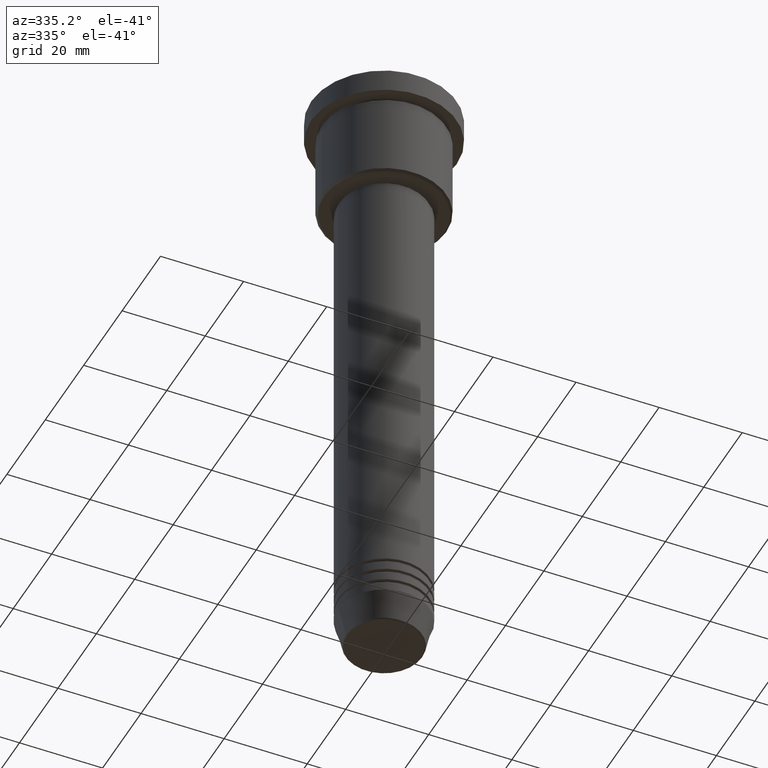
[diagram: clean part render]
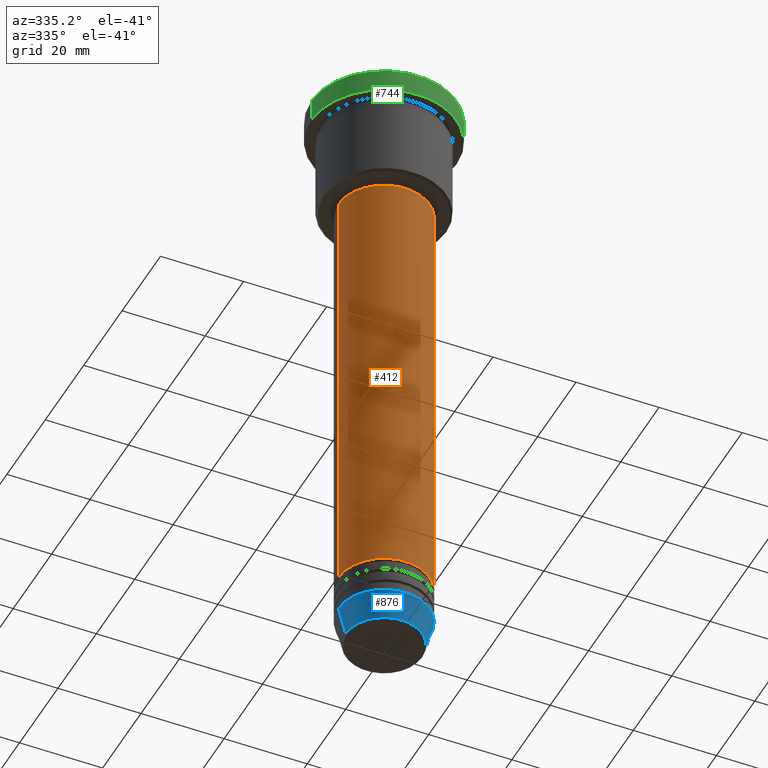
[diagram: same view with three faces highlighted in distinct colors, each labeled with its STEP entity id]
A machine part, auxiliary view with three faces highlighted in distinct colors.
Their STEP definitions:

[orange] entity #412 — the highlighted cylindrical surface (partial cylindrical patch) has radius 11 mm, axis along (-0, -0, 1).
#34 = VERTEX_POINT ( 'NONE', #866 ) ;
#58 = LINE ( 'NONE', #240, #574 ) ;
#99 = VECTOR ( 'NONE', #961, 1000.000000000000000 ) ;
#113 = EDGE_CURVE ( 'NONE', #34, #145, #58, .T. ) ;
#145 = VERTEX_POINT ( 'NONE', #330 ) ;
#188 = DIRECTION ( 'NONE',  ( 1.000000000000000000, 0.000000000000000000, 0.000000000000000000 ) ) ;
#204 = ORIENTED_EDGE ( 'NONE', *, *, #503, .F. ) ;
#214 = AXIS2_PLACEMENT_3D ( 'NONE', #1010, #1136, #188 ) ;
#240 = CARTESIAN_POINT ( 'NONE',  ( 11.00000000000000000, 0.000000000000000000, 0.000000000000000000 ) ) ;
#253 = DIRECTION ( 'NONE',  ( 1.000000000000000000, 0.000000000000000000, 0.000000000000000000 ) ) ;
#301 = VERTEX_POINT ( 'NONE', #732 ) ;
#317 = CARTESIAN_POINT ( 'NONE',  ( -11.00000000000000000, 1.347111479062088405E-15, 0.000000000000000000 ) ) ;
#330 = CARTESIAN_POINT ( 'NONE',  ( 11.00000000000000000, 0.000000000000000000, -27.99999999999998934 ) ) ;
#366 = EDGE_LOOP ( 'NONE', ( #204, #580, #444, #1027 ) ) ;
#412 = ADVANCED_FACE ( 'NONE', ( #452 ), #765, .T. ) ;
#444 = ORIENTED_EDGE ( 'NONE', *, *, #113, .T. ) ;
#452 = FACE_OUTER_BOUND ( 'NONE', #366, .T. ) ;
#471 = EDGE_CURVE ( 'NONE', #301, #145, #882, .T. ) ;
#496 = AXIS2_PLACEMENT_3D ( 'NONE', #888, #784, #1155 ) ;
#503 = EDGE_CURVE ( 'NONE', #733, #301, #773, .T. ) ;
#536 = CARTESIAN_POINT ( 'NONE',  ( 0.000000000000000000, 0.000000000000000000, -135.9999999999999432 ) ) ;
#574 = VECTOR ( 'NONE', #1138, 1000.000000000000000 ) ;
#580 = ORIENTED_EDGE ( 'NONE', *, *, #1033, .T. ) ;
#732 = CARTESIAN_POINT ( 'NONE',  ( -11.00000000000000000, 1.347111479062088405E-15, -27.99999999999998934 ) ) ;
#733 = VERTEX_POINT ( 'NONE', #1023 ) ;
#765 = CYLINDRICAL_SURFACE ( 'NONE', #214, 11.00000000000000000 ) ;
#768 = AXIS2_PLACEMENT_3D ( 'NONE', #536, #903, #253 ) ;
#773 = LINE ( 'NONE', #317, #99 ) ;
#784 = DIRECTION ( 'NONE',  ( -0.000000000000000000, -0.000000000000000000, 1.000000000000000000 ) ) ;
#866 = CARTESIAN_POINT ( 'NONE',  ( 11.00000000000000000, 0.000000000000000000, -135.9999999999999432 ) ) ;
#882 = CIRCLE ( 'NONE', #496, 11.00000000000000000 ) ;
#888 = CARTESIAN_POINT ( 'NONE',  ( 0.000000000000000000, 0.000000000000000000, -27.99999999999998934 ) ) ;
#903 = DIRECTION ( 'NONE',  ( -0.000000000000000000, -0.000000000000000000, 1.000000000000000000 ) ) ;
#961 = DIRECTION ( 'NONE',  ( -0.000000000000000000, -0.000000000000000000, 1.000000000000000000 ) ) ;
#1010 = CARTESIAN_POINT ( 'NONE',  ( 0.000000000000000000, 0.000000000000000000, 0.000000000000000000 ) ) ;
#1023 = CARTESIAN_POINT ( 'NONE',  ( -11.00000000000000000, 1.347111479062088405E-15, -135.9999999999999432 ) ) ;
#1027 = ORIENTED_EDGE ( 'NONE', *, *, #471, .F. ) ;
#1033 = EDGE_CURVE ( 'NONE', #733, #34, #1078, .T. ) ;
#1078 = CIRCLE ( 'NONE', #768, 11.00000000000000000 ) ;
#1136 = DIRECTION ( 'NONE',  ( -0.000000000000000000, -0.000000000000000000, 1.000000000000000000 ) ) ;
#1138 = DIRECTION ( 'NONE',  ( -0.000000000000000000, -0.000000000000000000, 1.000000000000000000 ) ) ;
#1155 = DIRECTION ( 'NONE',  ( 1.000000000000000000, 0.000000000000000000, 0.000000000000000000 ) ) ;

[blue] entity #876 — the highlighted conical surface has half-angle 15 deg.
#20 = CARTESIAN_POINT ( 'NONE',  ( -11.00000000000000000, 1.347111479062088405E-15, -145.0000000000000000 ) ) ;
#27 = AXIS2_PLACEMENT_3D ( 'NONE', #791, #492, #133 ) ;
#63 = VECTOR ( 'NONE', #166, 1000.000000000000000 ) ;
#101 = CARTESIAN_POINT ( 'NONE',  ( -11.00000000000000000, 1.347111479062088405E-15, -145.0000000000000000 ) ) ;
#133 = DIRECTION ( 'NONE',  ( 1.000000000000000000, 0.000000000000000000, 0.000000000000000000 ) ) ;
#166 = DIRECTION ( 'NONE',  ( 0.2588190451025213501, 0.000000000000000000, 0.9659258262890680902 ) ) ;
#199 = ORIENTED_EDGE ( 'NONE', *, *, #1041, .F. ) ;
#248 = CARTESIAN_POINT ( 'NONE',  ( 11.00000000000000000, 0.000000000000000000, -145.0000000000000000 ) ) ;
#265 = CARTESIAN_POINT ( 'NONE',  ( 0.000000000000000000, 0.000000000000000000, -145.0000000000000000 ) ) ;
#303 = VERTEX_POINT ( 'NONE', #101 ) ;
#326 = EDGE_CURVE ( 'NONE', #642, #303, #565, .T. ) ;
#349 = EDGE_LOOP ( 'NONE', ( #519, #756, #776, #199 ) ) ;
#416 = DIRECTION ( 'NONE',  ( 1.000000000000000000, 0.000000000000000000, 0.000000000000000000 ) ) ;
#421 = AXIS2_PLACEMENT_3D ( 'NONE', #265, #817, #1169 ) ;
#434 = VECTOR ( 'NONE', #1017, 1000.000000000000000 ) ;
#465 = EDGE_CURVE ( 'NONE', #642, #646, #575, .T. ) ;
#492 = DIRECTION ( 'NONE',  ( -0.000000000000000000, -0.000000000000000000, 1.000000000000000000 ) ) ;
#519 = ORIENTED_EDGE ( 'NONE', *, *, #326, .F. ) ;
#521 = CARTESIAN_POINT ( 'NONE',  ( 0.000000000000000000, 0.000000000000000000, -151.6294095225512137 ) ) ;
#523 = EDGE_CURVE ( 'NONE', #646, #739, #1148, .T. ) ;
#537 = CONICAL_SURFACE ( 'NONE', #27, 11.00000000000000000, 0.2617993877991500740 ) ;
#565 = LINE ( 'NONE', #20, #434 ) ;
#575 = CIRCLE ( 'NONE', #630, 9.223655072137194821 ) ;
#630 = AXIS2_PLACEMENT_3D ( 'NONE', #521, #966, #416 ) ;
#642 = VERTEX_POINT ( 'NONE', #827 ) ;
#646 = VERTEX_POINT ( 'NONE', #991 ) ;
#711 = CIRCLE ( 'NONE', #421, 11.00000000000000000 ) ;
#739 = VERTEX_POINT ( 'NONE', #929 ) ;
#756 = ORIENTED_EDGE ( 'NONE', *, *, #465, .T. ) ;
#776 = ORIENTED_EDGE ( 'NONE', *, *, #523, .T. ) ;
#791 = CARTESIAN_POINT ( 'NONE',  ( 0.000000000000000000, 0.000000000000000000, -145.0000000000000000 ) ) ;
#817 = DIRECTION ( 'NONE',  ( -0.000000000000000000, -0.000000000000000000, 1.000000000000000000 ) ) ;
#827 = CARTESIAN_POINT ( 'NONE',  ( -9.223655072137194821, 1.238341722557647596E-15, -151.6294095225512137 ) ) ;
#876 = ADVANCED_FACE ( 'NONE', ( #1057 ), #537, .T. ) ;
#929 = CARTESIAN_POINT ( 'NONE',  ( 11.00000000000000000, 0.000000000000000000, -145.0000000000000000 ) ) ;
#966 = DIRECTION ( 'NONE',  ( -0.000000000000000000, -0.000000000000000000, 1.000000000000000000 ) ) ;
#991 = CARTESIAN_POINT ( 'NONE',  ( 9.223655072137194821, 0.000000000000000000, -151.6294095225512137 ) ) ;
#1017 = DIRECTION ( 'NONE',  ( -0.2588190451025213501, 3.169619151431772337E-17, 0.9659258262890680902 ) ) ;
#1041 = EDGE_CURVE ( 'NONE', #303, #739, #711, .T. ) ;
#1057 = FACE_OUTER_BOUND ( 'NONE', #349, .T. ) ;
#1148 = LINE ( 'NONE', #248, #63 ) ;
#1169 = DIRECTION ( 'NONE',  ( 1.000000000000000000, 0.000000000000000000, 0.000000000000000000 ) ) ;

[green] entity #744 — the highlighted cylindrical surface (partial cylindrical patch) has radius 17.5 mm, axis along (-0, -0, 1).
#37 = CARTESIAN_POINT ( 'NONE',  ( 0.000000000000000000, 0.000000000000000000, -0.5000000000000143219 ) ) ;
#61 = VERTEX_POINT ( 'NONE', #490 ) ;
#65 = DIRECTION ( 'NONE',  ( -0.000000000000000000, -0.000000000000000000, 1.000000000000000000 ) ) ;
#71 = DIRECTION ( 'NONE',  ( -0.000000000000000000, -0.000000000000000000, 1.000000000000000000 ) ) ;
#77 = EDGE_LOOP ( 'NONE', ( #872, #426, #790, #325 ) ) ;
#102 = AXIS2_PLACEMENT_3D ( 'NONE', #146, #247, #506 ) ;
#118 = DIRECTION ( 'NONE',  ( 1.000000000000000000, 0.000000000000000000, 0.000000000000000000 ) ) ;
#142 = EDGE_CURVE ( 'NONE', #1007, #61, #1129, .T. ) ;
#146 = CARTESIAN_POINT ( 'NONE',  ( 0.000000000000000000, 0.000000000000000000, -5.999999999999995559 ) ) ;
#176 = VECTOR ( 'NONE', #71, 1000.000000000000000 ) ;
#202 = DIRECTION ( 'NONE',  ( -0.000000000000000000, -0.000000000000000000, 1.000000000000000000 ) ) ;
#220 = CARTESIAN_POINT ( 'NONE',  ( 0.000000000000000000, 0.000000000000000000, 0.000000000000000000 ) ) ;
#247 = DIRECTION ( 'NONE',  ( -0.000000000000000000, -0.000000000000000000, 1.000000000000000000 ) ) ;
#270 = AXIS2_PLACEMENT_3D ( 'NONE', #37, #392, #760 ) ;
#323 = LINE ( 'NONE', #704, #611 ) ;
#325 = ORIENTED_EDGE ( 'NONE', *, *, #142, .T. ) ;
#335 = VERTEX_POINT ( 'NONE', #856 ) ;
#392 = DIRECTION ( 'NONE',  ( 0.000000000000000000, 0.000000000000000000, -1.000000000000000000 ) ) ;
#426 = ORIENTED_EDGE ( 'NONE', *, *, #996, .T. ) ;
#480 = EDGE_CURVE ( 'NONE', #552, #1007, #1161, .T. ) ;
#485 = EDGE_CURVE ( 'NONE', #335, #61, #323, .T. ) ;
#490 = CARTESIAN_POINT ( 'NONE',  ( -17.50000000000000000, 2.143131898507868248E-15, -0.5000000000000143219 ) ) ;
#506 = DIRECTION ( 'NONE',  ( 1.000000000000000000, 0.000000000000000000, 0.000000000000000000 ) ) ;
#552 = VERTEX_POINT ( 'NONE', #875 ) ;
#611 = VECTOR ( 'NONE', #65, 1000.000000000000000 ) ;
#704 = CARTESIAN_POINT ( 'NONE',  ( -17.50000000000000000, 2.143131898507868248E-15, 0.000000000000000000 ) ) ;
#742 = FACE_OUTER_BOUND ( 'NONE', #77, .T. ) ;
#744 = ADVANCED_FACE ( 'NONE', ( #742 ), #1109, .T. ) ;
#760 = DIRECTION ( 'NONE',  ( 1.000000000000000000, 0.000000000000000000, 0.000000000000000000 ) ) ;
#790 = ORIENTED_EDGE ( 'NONE', *, *, #480, .T. ) ;
#856 = CARTESIAN_POINT ( 'NONE',  ( -17.50000000000000000, 2.143131898507868248E-15, -5.999999999999995559 ) ) ;
#872 = ORIENTED_EDGE ( 'NONE', *, *, #485, .F. ) ;
#875 = CARTESIAN_POINT ( 'NONE',  ( 17.50000000000000000, 0.000000000000000000, -5.999999999999995559 ) ) ;
#912 = CARTESIAN_POINT ( 'NONE',  ( 17.50000000000000000, 0.000000000000000000, -0.5000000000000143219 ) ) ;
#996 = EDGE_CURVE ( 'NONE', #335, #552, #1001, .T. ) ;
#1001 = CIRCLE ( 'NONE', #102, 17.50000000000000000 ) ;
#1007 = VERTEX_POINT ( 'NONE', #912 ) ;
#1069 = CARTESIAN_POINT ( 'NONE',  ( 17.50000000000000000, 0.000000000000000000, 0.000000000000000000 ) ) ;
#1076 = AXIS2_PLACEMENT_3D ( 'NONE', #220, #202, #118 ) ;
#1109 = CYLINDRICAL_SURFACE ( 'NONE', #1076, 17.50000000000000000 ) ;
#1129 = CIRCLE ( 'NONE', #270, 17.50000000000000000 ) ;
#1161 = LINE ( 'NONE', #1069, #176 ) ;